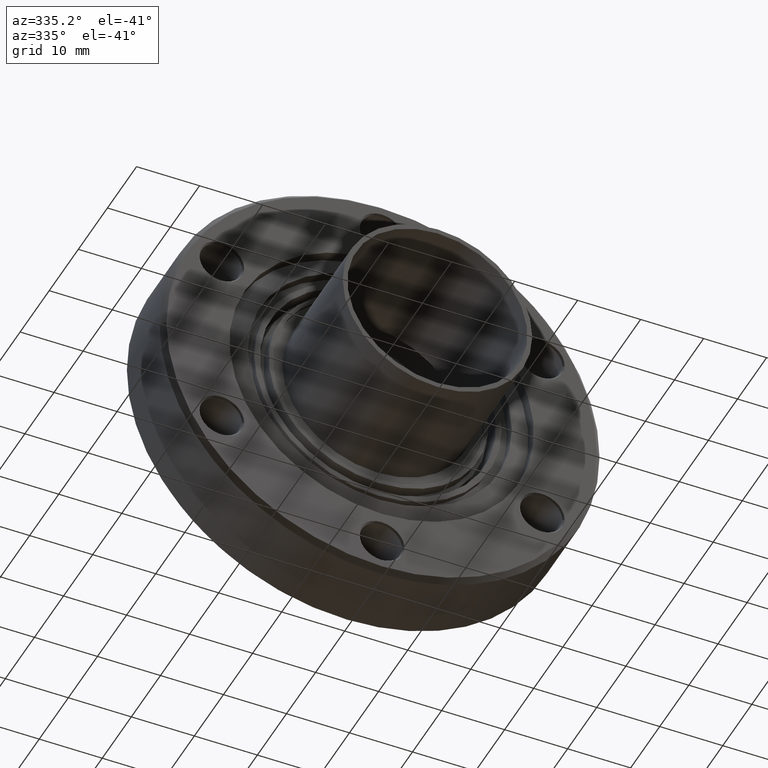
[diagram: clean part render]
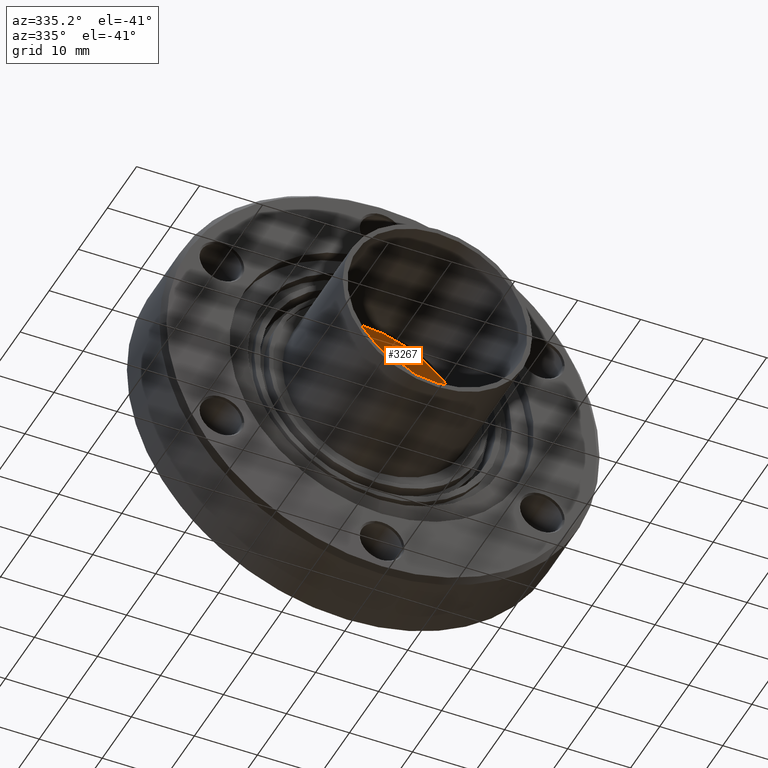
[diagram: same view with one face highlighted and labeled with its STEP entity id]
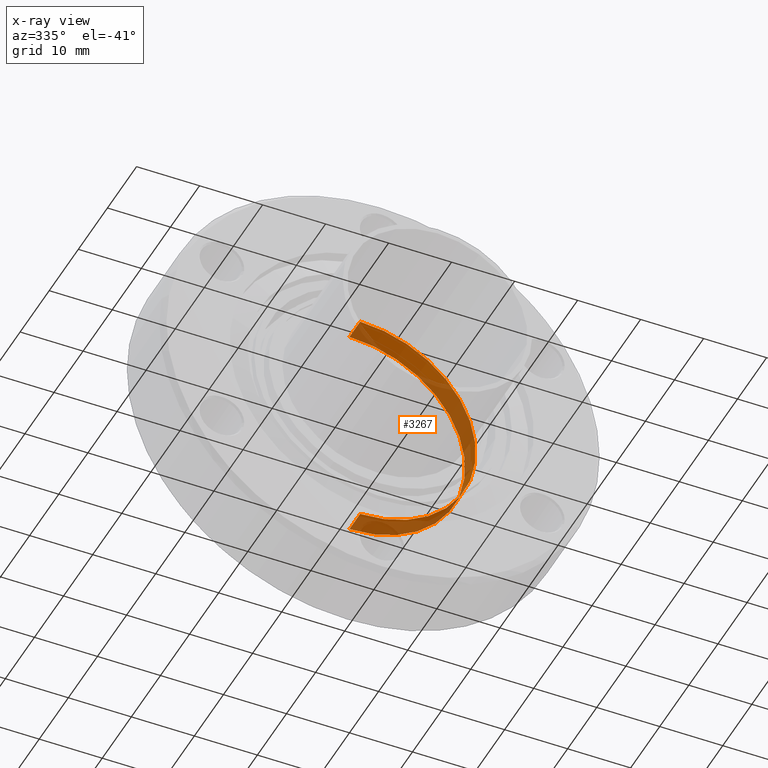
[diagram: x-ray of the same camera — body ghosted, the highlighted face saturated]
A machine part, auxiliary view. The second image highlights one B-rep face of the part: STEP entity #3267.
The next image is the same camera in x-ray: the body ghosted, the highlighted face saturated — about 59% of this face is hidden behind the body in this view.
In plain terms, the highlighted cylindrical surface (partial cylindrical patch) has radius 18.3515 mm, axis along (0, 1, -0).
Its self-contained STEP definition (entity closure, byte-faithful):
#859 = CIRCLE ( 'NONE', #1195, 0.7225000000000001400 ) ;
#936 = EDGE_CURVE ( 'NONE', #1665, #1671, #859, .T. ) ;
#948 = EDGE_CURVE ( 'NONE', #1657, #1672, #2110, .T. ) ;
#993 = EDGE_CURVE ( 'NONE', #1671, #1657, #2125, .T. ) ;
#1018 = EDGE_CURVE ( 'NONE', #1665, #1672, #2146, .T. ) ;
#1195 = AXIS2_PLACEMENT_3D ( 'NONE', #3497, #3500, #3499 ) ;
#1269 = AXIS2_PLACEMENT_3D ( 'NONE', #3508, #3507, #3511 ) ;
#1419 = AXIS2_PLACEMENT_3D ( 'NONE', #3751, #3750, #3747 ) ;
#1527 = DIRECTION ( 'NONE',  ( 1.263491866175309700E-019, 1.000000000000000000, -3.458525865541354800E-018 ) ) ;
#1542 = CARTESIAN_POINT ( 'NONE',  ( -2.017919299726392300E-019, -0.06400000000000319300, 0.7225000000000001400 ) ) ;
#1601 = CARTESIAN_POINT ( 'NONE',  ( 8.827893930842364800E-017, -0.06400000000000319300, -0.7225000000000001400 ) ) ;
#1602 = DIRECTION ( 'NONE',  ( 1.263491866175309700E-019, 1.000000000000000000, -3.458525865541354800E-018 ) ) ;
#1657 = VERTEX_POINT ( 'NONE', #1996 ) ;
#1665 = VERTEX_POINT ( 'NONE', #2004 ) ;
#1671 = VERTEX_POINT ( 'NONE', #2010 ) ;
#1672 = VERTEX_POINT ( 'NONE', #2011 ) ;
#1693 = EDGE_LOOP ( 'NONE', ( #2533, #2546, #2545, #2479 ) ) ;
#1996 = CARTESIAN_POINT ( 'NONE',  ( 8.826977899239387500E-017, -0.06400000000000319300, -0.7225000000000001400 ) ) ;
#2004 = CARTESIAN_POINT ( 'NONE',  ( -2.201125620321812300E-019, -0.2090000000000031600, 0.7225000000000001400 ) ) ;
#2010 = CARTESIAN_POINT ( 'NONE',  ( 8.826977899239387500E-017, -0.2090000000000031600, -0.7225000000000001400 ) ) ;
#2011 = CARTESIAN_POINT ( 'NONE',  ( -2.017919299726392300E-019, -0.06400000000000319300, 0.7225000000000001400 ) ) ;
#2110 = CIRCLE ( 'NONE', #1269, 0.7225000000000001400 ) ;
#2122 = VECTOR ( 'NONE', #1527, 39.37007874015748100 ) ;
#2125 = LINE ( 'NONE', #1601, #2135 ) ;
#2135 = VECTOR ( 'NONE', #1602, 39.37007874015748100 ) ;
#2146 = LINE ( 'NONE', #1542, #2122 ) ;
#2479 = ORIENTED_EDGE ( 'NONE', *, *, #948, .F. ) ;
#2533 = ORIENTED_EDGE ( 'NONE', *, *, #993, .F. ) ;
#2545 = ORIENTED_EDGE ( 'NONE', *, *, #1018, .T. ) ;
#2546 = ORIENTED_EDGE ( 'NONE', *, *, #936, .F. ) ;
#2672 = FACE_OUTER_BOUND ( 'NONE', #1693, .T. ) ;
#2679 = CYLINDRICAL_SURFACE ( 'NONE', #1419, 0.7225000000000001400 ) ;
#3267 = ADVANCED_FACE ( 'NONE', ( #2672 ), #2679, .F. ) ;
#3497 = CARTESIAN_POINT ( 'NONE',  ( -2.201125620321812300E-019, -0.2090000000000031600, -3.493884224585458000E-017 ) ) ;
#3499 = DIRECTION ( 'NONE',  ( 0.0000000000000000000, 0.0000000000000000000, 1.000000000000000000 ) ) ;
#3500 = DIRECTION ( 'NONE',  ( 1.263491866175309700E-019, 1.000000000000000000, -3.458525865541354800E-018 ) ) ;
#3507 = DIRECTION ( 'NONE',  ( -1.263491866175309700E-019, -1.000000000000000000, 3.458525865541354800E-018 ) ) ;
#3508 = CARTESIAN_POINT ( 'NONE',  ( -2.017919299726392300E-019, -0.06400000000000319300, -3.544032849635807600E-017 ) ) ;
#3511 = DIRECTION ( 'NONE',  ( 0.0000000000000000000, 0.0000000000000000000, 1.000000000000000000 ) ) ;
#3747 = DIRECTION ( 'NONE',  ( 0.0000000000000000000, 0.0000000000000000000, 1.000000000000000000 ) ) ;
#3750 = DIRECTION ( 'NONE',  ( 1.263491866175309700E-019, 1.000000000000000000, -3.458525865541354800E-018 ) ) ;
#3751 = CARTESIAN_POINT ( 'NONE',  ( -2.017919299726392300E-019, -0.06400000000000319300, -3.544032849635807600E-017 ) ) ;